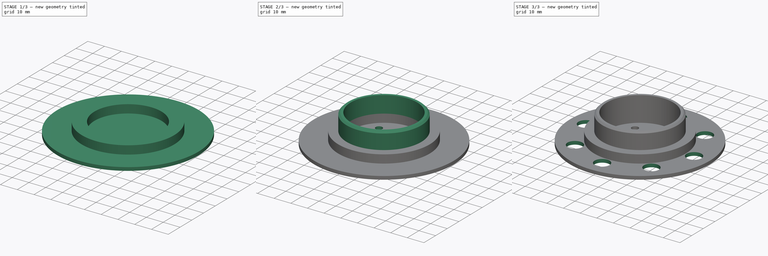
[diagram: build sequence overview — one tinted view per stage of 3, left to right]
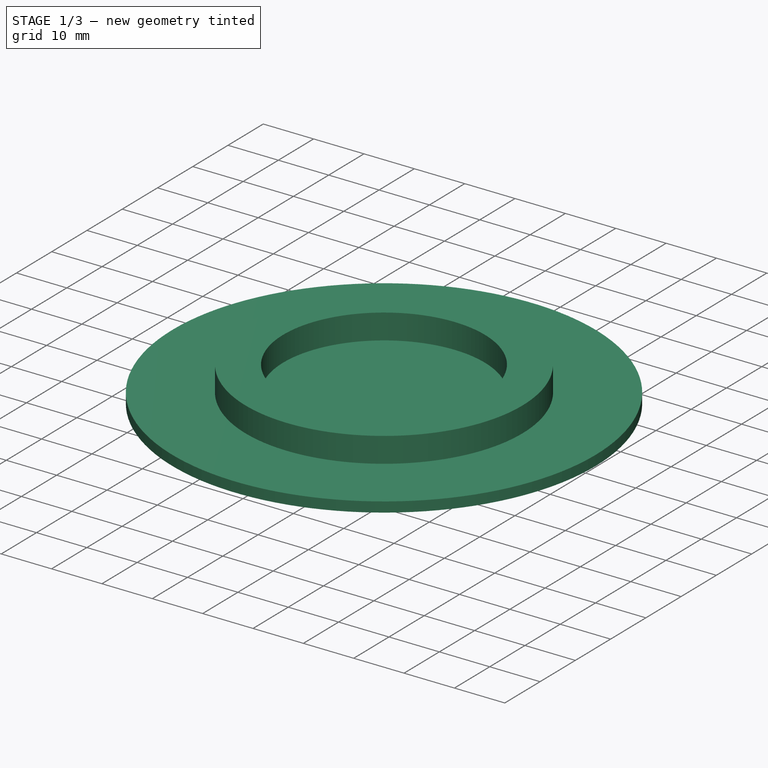
[diagram: stage 1 of 3 — iso view after this stage's code; geometry added in this stage tinted green]
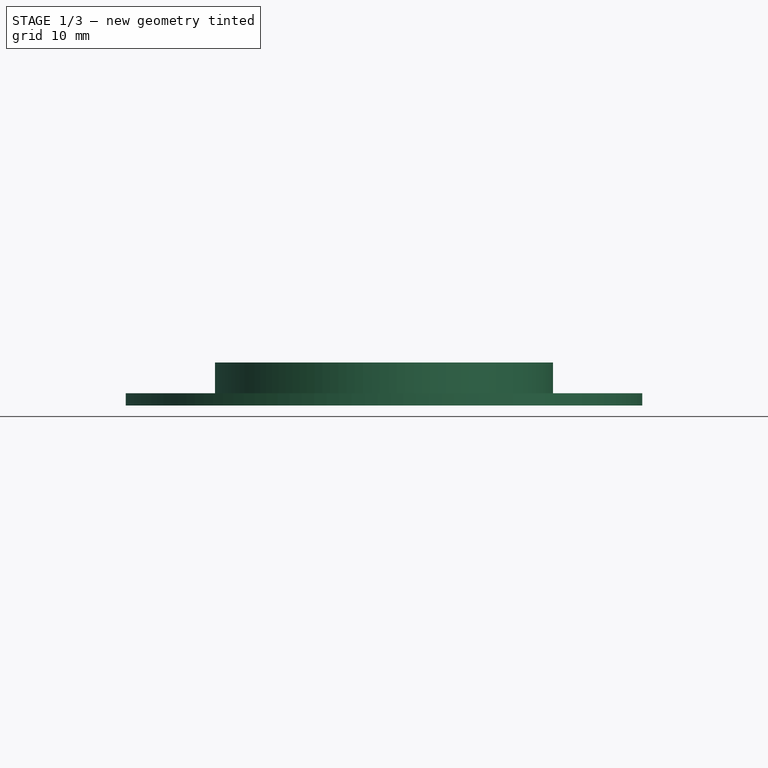
[diagram: stage 1 of 3 — front view after this stage's code; geometry added in this stage tinted green]
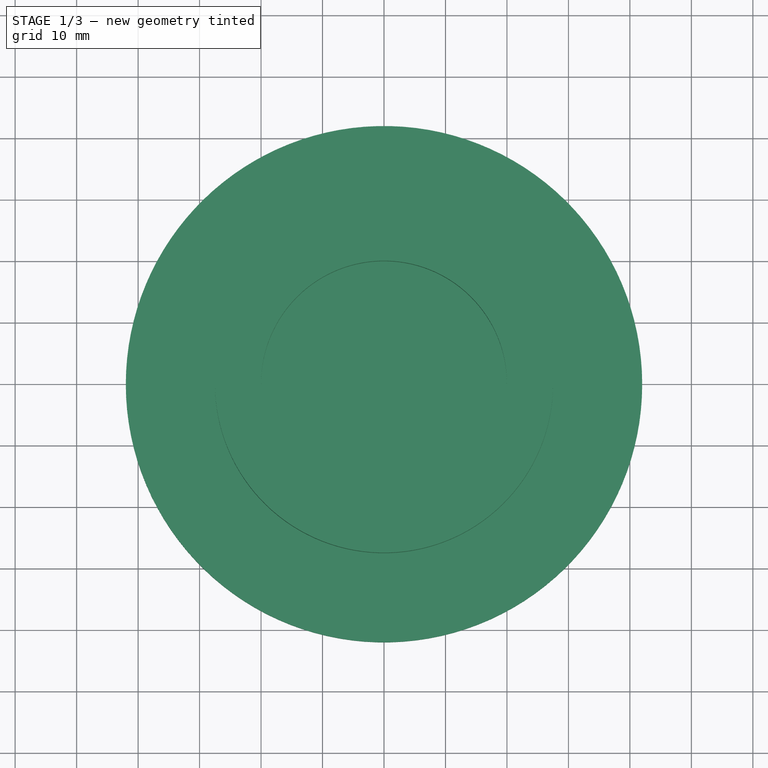
[diagram: stage 1 of 3 — top view after this stage's code; geometry added in this stage tinted green]
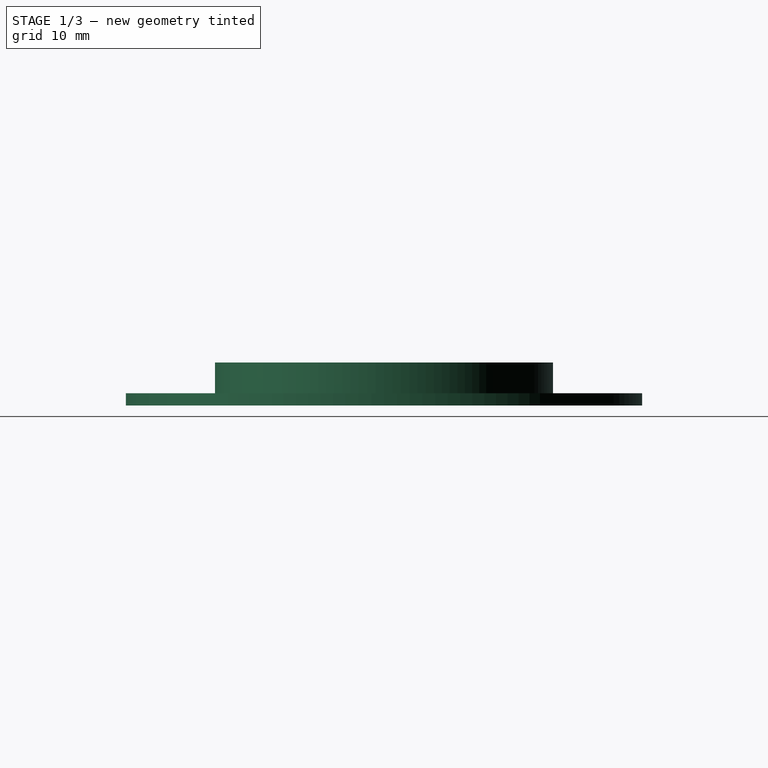
[diagram: stage 1 of 3 — right view after this stage's code; geometry added in this stage tinted green]
FCSTD DOCUMENT  (FreeCAD 0.19R24276 (Git))
Label: Bearing_support_for45x75x11_v1
License: All rights reserved
LicenseURL: http://en.wikipedia.org/wiki/All_rights_reserved
objects: Sketcher::SketchObject×6, PartDesign::Pad×3, PartDesign::Pocket×3, PartDesign::Chamfer×1, PartDesign::Body×1
note: 21 computed .brp shape members not serialized (recipe doc carries the construction recipe); baked Part::Feature solids carry a one-line shape summary decoded from their .brp

FEATURE [Sketcher::SketchObject] Sketch
  FullyConstrained = true
  MapMode = 5
  Support = -> [XY_Plane]
  sketch-geometry (1):
    g0: Circle CenterX=0 CenterY=0 CenterZ=0 NormalX=0 NormalY=0 NormalZ=1 AngleXU=0 Radius=42
  constraints (2):
    c: Coincident(g0,g-1)
    c: Diameter(g0) = 84
FEATURE [PartDesign::Pad] Pad
  Direction = (1,1,1)
  Length = 2
  Length2 = 100
  Profile = -> Sketch
  Type = 0
FEATURE [Sketcher::SketchObject] Sketch001
  FullyConstrained = true
  MapMode = 5
  Placement = pos=(0,0,2) rot=(0,0,1;0rad)
  Support = -> [Pad]
  sketch-geometry (2):
    g0: Circle CenterX=0 CenterY=0 CenterZ=0 NormalX=0 NormalY=0 NormalZ=1 AngleXU=0 Radius=27.5
    g1: Circle CenterX=0 CenterY=0 CenterZ=0 NormalX=0 NormalY=0 NormalZ=1 AngleXU=0 Radius=20
  constraints (4):
    c: Coincident(g0,g-1)
    c: Coincident(g1,g0)
    c: Diameter(g1) = 40
    c: Diameter(g0) = 55
FEATURE [PartDesign::Pad] Pad001
  BaseFeature = -> Pad
  Direction = (1,1,1)
  Length = 5
  Length2 = 100
  Profile = -> Sketch001
  Type = 0
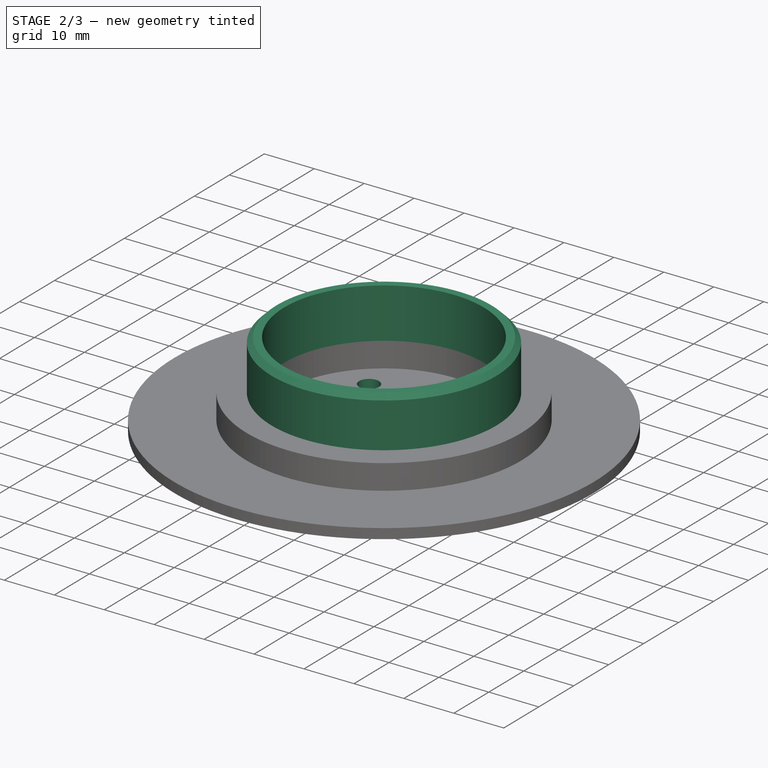
[diagram: stage 2 of 3 — iso view after this stage's code; geometry added in this stage tinted green]
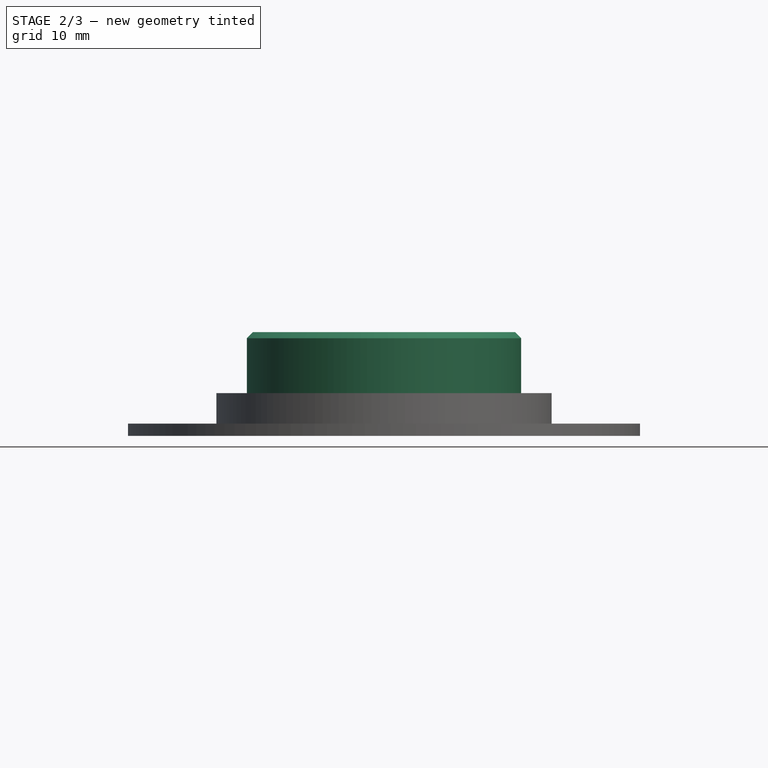
[diagram: stage 2 of 3 — front view after this stage's code; geometry added in this stage tinted green]
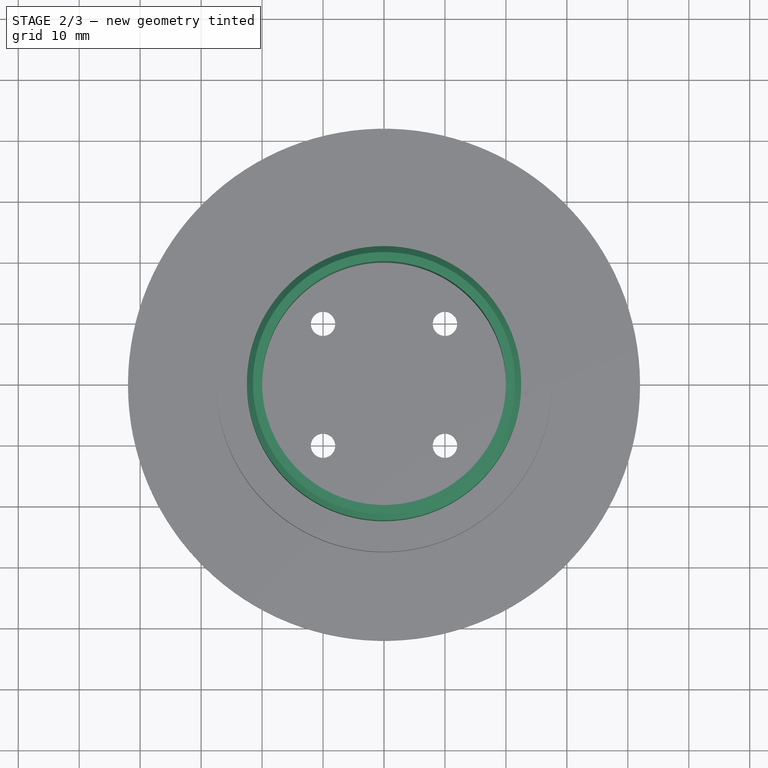
[diagram: stage 2 of 3 — top view after this stage's code; geometry added in this stage tinted green]
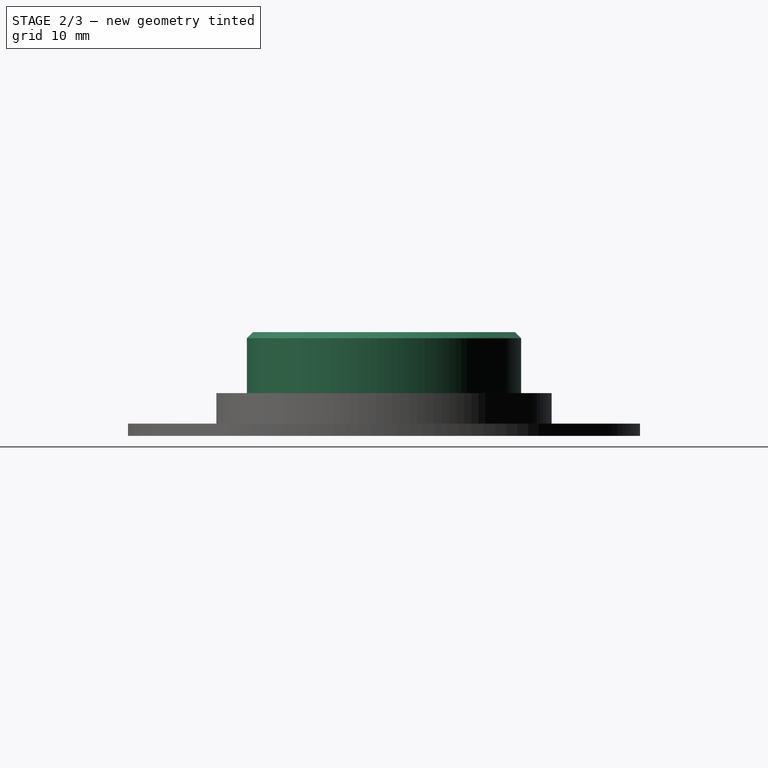
[diagram: stage 2 of 3 — right view after this stage's code; geometry added in this stage tinted green]
FEATURE [Sketcher::SketchObject] Sketch002
  FullyConstrained = true
  MapMode = 5
  Placement = pos=(0,0,7) rot=(0,0,1;0rad)
  Support = -> [Pad001]
  sketch-geometry (2):
    g0: Circle CenterX=0 CenterY=0 CenterZ=0 NormalX=0 NormalY=0 NormalZ=1 AngleXU=0 Radius=20
    g1: Circle CenterX=0 CenterY=0 CenterZ=0 NormalX=0 NormalY=0 NormalZ=1 AngleXU=0 Radius=22.5
  constraints (4):
    c: Coincident(g0,g-1)
    c: Coincident(g1,g0)
    c: Diameter(g0) = 40
    c: Diameter(g1) = 45
FEATURE [PartDesign::Pad] Pad002
  BaseFeature = -> Pad001
  Direction = (1,1,1)
  Length = 10
  Length2 = 100
  Profile = -> Sketch002
  Type = 0
FEATURE [PartDesign::Chamfer] Chamfer
  Angle = 45
  Base = -> Pad002 [Edge9]
  BaseFeature = -> Pad002
  ChamferType = 0
  FlipDirection = false
  Size = 1
  Size2 = 1
  SupportTransform = false
FEATURE [Sketcher::SketchObject] Sketch003
  FullyConstrained = false
  MapMode = 5
  Placement = pos=(0,0,2) rot=(0,0,1;0rad)
  Support = -> [Chamfer]
  sketch-geometry (4):
    g0: Circle CenterX=-10 CenterY=10 CenterZ=0 NormalX=0 NormalY=0 NormalZ=1 AngleXU=0 Radius=2
    g1: Circle CenterX=10 CenterY=10 CenterZ=0 NormalX=0 NormalY=0 NormalZ=1 AngleXU=0 Radius=2
    g2: Circle CenterX=10 CenterY=-10 CenterZ=0 NormalX=0 NormalY=0 NormalZ=1 AngleXU=0 Radius=2
    g3: Circle CenterX=-10 CenterY=-10 CenterZ=0 NormalX=0 NormalY=0 NormalZ=1 AngleXU=0 Radius=2
  constraints (4):
    c: Diameter(g1) = 4
    c: Equal(g3,g2)
    c: Equal(g2,g1)
    c: Equal(g0,g3)
FEATURE [PartDesign::Pocket] Pocket
  BaseFeature = -> Chamfer
  Length = 5
  Length2 = 100
  Profile = -> Sketch003
  Type = 1
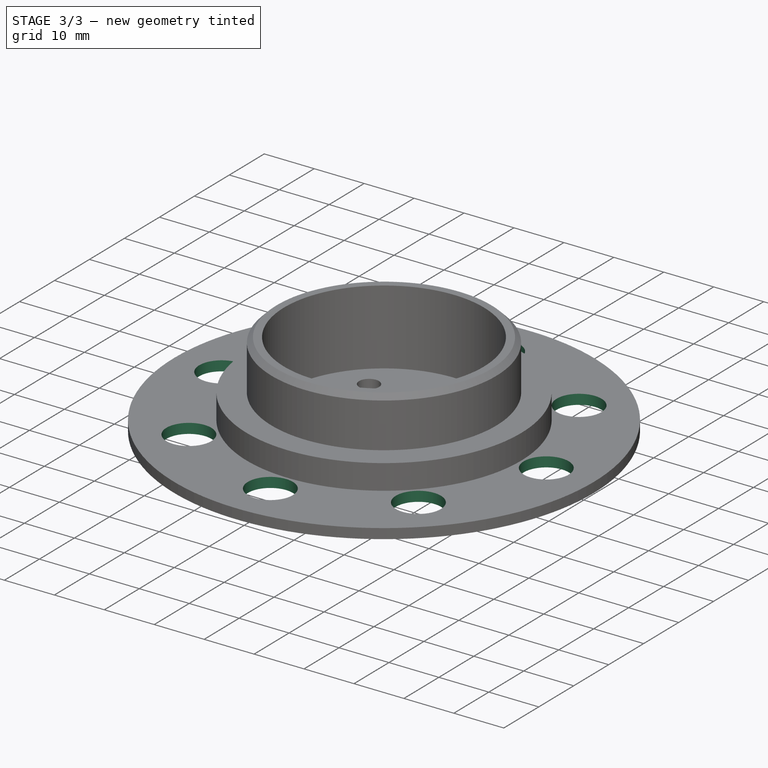
[diagram: stage 3 of 3 — iso view after this stage's code; geometry added in this stage tinted green]
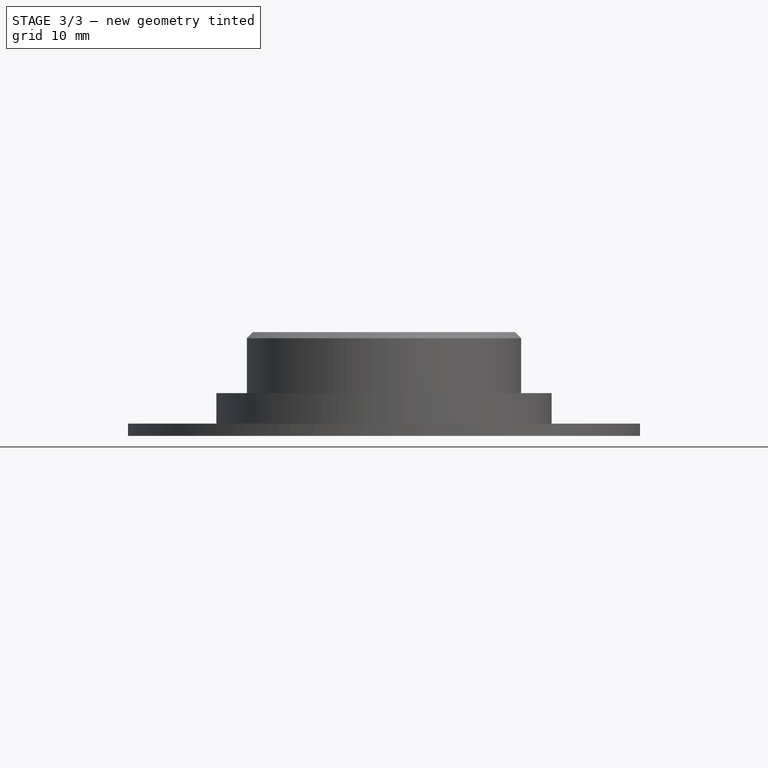
[diagram: stage 3 of 3 — front view after this stage's code; geometry added in this stage tinted green]
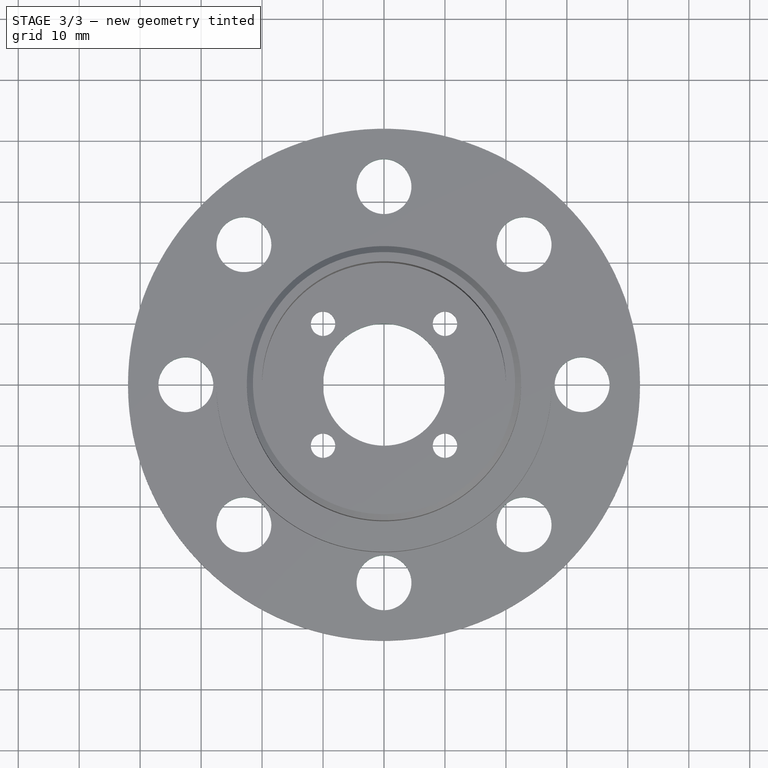
[diagram: stage 3 of 3 — top view after this stage's code; geometry added in this stage tinted green]
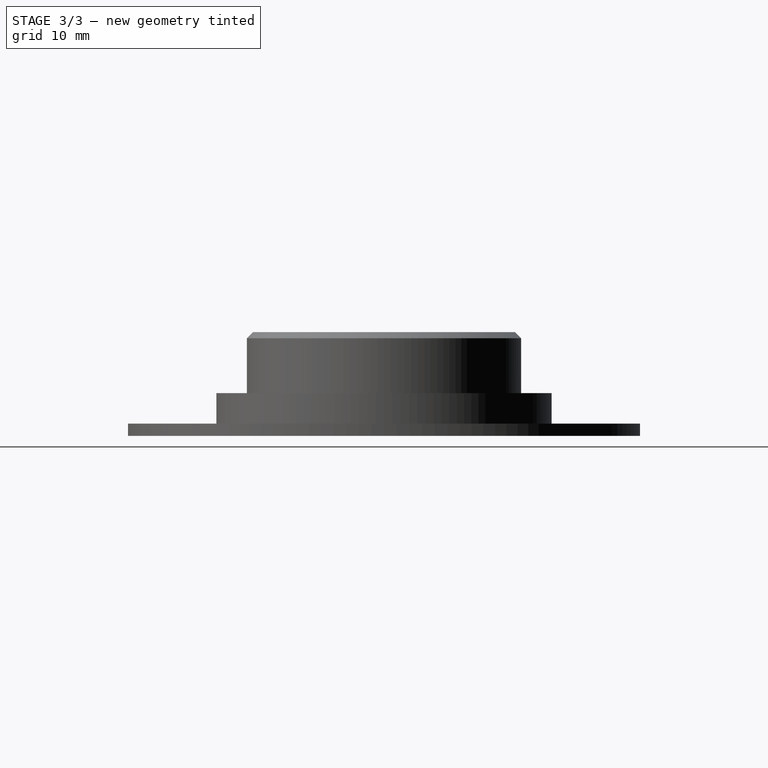
[diagram: stage 3 of 3 — right view after this stage's code; geometry added in this stage tinted green]
FEATURE [Sketcher::SketchObject] Sketch004
  FullyConstrained = true
  MapMode = 5
  Placement = pos=(0,0,2) rot=(0,0,1;0rad)
  Support = -> [Pocket]
  sketch-geometry (1):
    g0: Circle CenterX=0 CenterY=0 CenterZ=0 NormalX=0 NormalY=0 NormalZ=1 AngleXU=0 Radius=10
  constraints (2):
    c: Coincident(g0,g-1)
    c: Diameter(g0) = 20
FEATURE [PartDesign::Pocket] Pocket001
  BaseFeature = -> Pocket
  Length = 5
  Length2 = 100
  Profile = -> Sketch004
  Type = 0
FEATURE [Sketcher::SketchObject] Sketch005
  FullyConstrained = false
  MapMode = 5
  Placement = pos=(0,0,2) rot=(0,0,1;0rad)
  Support = -> [Pocket001]
  sketch-geometry (20):
    g0: Circle CenterX=0 CenterY=0 CenterZ=0 NormalX=0 NormalY=0 NormalZ=1 AngleXU=0 Radius=37.5
    g1: Circle CenterX=0 CenterY=0 CenterZ=0 NormalX=0 NormalY=0 NormalZ=1 AngleXU=0 Radius=27.5
    g2: Circle CenterX=0 CenterY=0 CenterZ=0 NormalX=0 NormalY=0 NormalZ=1 AngleXU=0 Radius=32.5
    g3: Circle CenterX=-22.981 CenterY=22.981 CenterZ=0 NormalX=0 NormalY=0 NormalZ=1 AngleXU=0 Radius=4.5
    g4: Circle CenterX=2e-15 CenterY=32.5 CenterZ=0 NormalX=0 NormalY=0 NormalZ=1 AngleXU=0 Radius=4.5
    g5: Circle CenterX=22.981 CenterY=22.981 CenterZ=0 NormalX=0 NormalY=0 NormalZ=1 AngleXU=0 Radius=4.5
    g6: Circle CenterX=32.5 CenterY=0 CenterZ=0 NormalX=0 NormalY=0 NormalZ=1 AngleXU=0 Radius=4.5
    g7: LineSegment StartX=0 StartY=0 StartZ=0 EndX=32.5 EndY=0 EndZ=0
    g8: LineSegment StartX=0 StartY=0 StartZ=0 EndX=22.981 EndY=22.981 EndZ=0
    g9: LineSegment StartX=0 StartY=0 StartZ=0 EndX=2e-15 EndY=32.5 EndZ=0
    g10: LineSegment StartX=0 StartY=0 StartZ=0 EndX=-22.981 EndY=22.981 EndZ=0
    g11: LineSegment StartX=0 StartY=0 StartZ=0 EndX=59.4864 EndY=0 EndZ=0
    g12: Circle CenterX=-32.5 CenterY=4e-15 CenterZ=0 NormalX=0 NormalY=0 NormalZ=1 AngleXU=0 Radius=4.5
    g13: Circle CenterX=-22.981 CenterY=-22.981 CenterZ=0 NormalX=0 NormalY=0 NormalZ=1 AngleXU=0 Radius=4.5
    g14: Circle CenterX=5.3e-15 CenterY=-32.5 CenterZ=0 NormalX=0 NormalY=0 NormalZ=1 AngleXU=0 Radius=4.5
    g15: Circle CenterX=22.981 CenterY=-22.981 CenterZ=0 NormalX=0 NormalY=0 NormalZ=1 AngleXU=0 Radius=4.5
    g16: LineSegment StartX=-32.5 StartY=4e-15 StartZ=0 EndX=0 EndY=0 EndZ=0
    g17: LineSegment StartX=-22.981 StartY=-22.981 StartZ=0 EndX=0 EndY=0 EndZ=0
    g18: LineSegment StartX=5.3e-15 StartY=-32.5 StartZ=0 EndX=0 EndY=0 EndZ=0
    g19: LineSegment StartX=22.981 StartY=-22.981 StartZ=0 EndX=0 EndY=0 EndZ=0
  constraints (48):
    c: Coincident(g0,g-1)
    c: Diameter(g0) = 75
    c: Coincident(g1,g-1)
    c: Diameter(g1) = 55
    c: Coincident(g2,g-1)
    c: Diameter(g2) = 65
    c: PointOnObject(g3,g2)
    c: PointOnObject(g4,g2)
    c: PointOnObject(g5,g2)
    c: PointOnObject(g6,g2)
    c: Equal(g3,g4)
    c: Equal(g4,g5)
    c: Equal(g5,g6)
    c: Diameter(g3) = 9
    c: Coincident(g7,g-1)
    c: Coincident(g7,g6)
    c: Coincident(g8,g-1)
    c: Coincident(g8,g5)
    c: Coincident(g9,g-1)
    c: Coincident(g9,g4)
    c: Coincident(g10,g-1)
    c: Coincident(g10,g3)
    c: Coincident(g11,g-1)
    c: PointOnObject(g11,g-1)
    c: Angle(g11,g7) = 0
    c: Angle(g11,g8) = 0.785398
    c: Angle(g11,g9) = 1.5708
    c: Angle(g11,g10) = 2.35619
    c: PointOnObject(g12,g2)
    c: PointOnObject(g13,g2)
    c: PointOnObject(g14,g2)
    c: PointOnObject(g15,g2)
    c: Coincident(g16,g12)
    c: Coincident(g16,g-1)
    c: Coincident(g17,g13)
    c: Coincident(g17,g-1)
    c: Coincident(g18,g14)
    c: Coincident(g18,g-1)
    c: Coincident(g19,g15)
    c: Coincident(g19,g-1)
    c: Angle(g11,g16) = 3.14159
    c: Angle(g17,g11) = 2.35619
    c: Angle(g18,g11) = 1.5708
    c: Angle(g19,g11) = 0.785398
    c: Equal(g12,g13)
    c: Equal(g13,g14)
    c: Equal(g14,g15)
    c: Equal(g15,g6)
FEATURE [PartDesign::Pocket] Pocket002
  BaseFeature = -> Pocket001
  Length = 5
  Length2 = 100
  Profile = -> Sketch005
  Type = 1
FEATURE [PartDesign::Body] Body
  Group = -> [Sketch,Pad,Sketch001,Pad001,Sketch002,Pad002,Chamfer,Sketch003,Pocket,Sketch004,Pocket001,Sketch005,Pocket002]
  Origin = -> Origin
  Tip = -> Pocket002
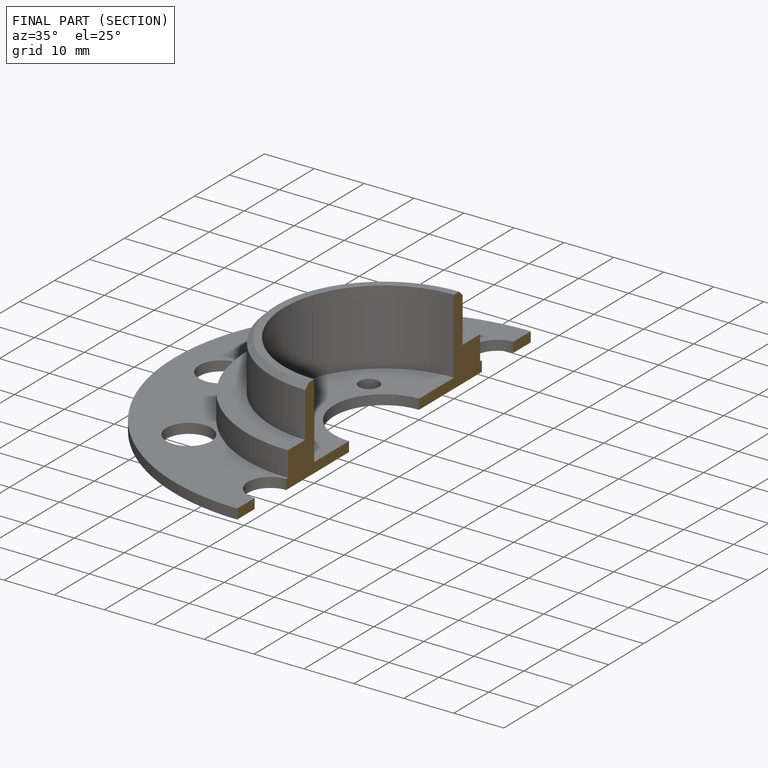
[diagram: finished part — half-section view (interior)]
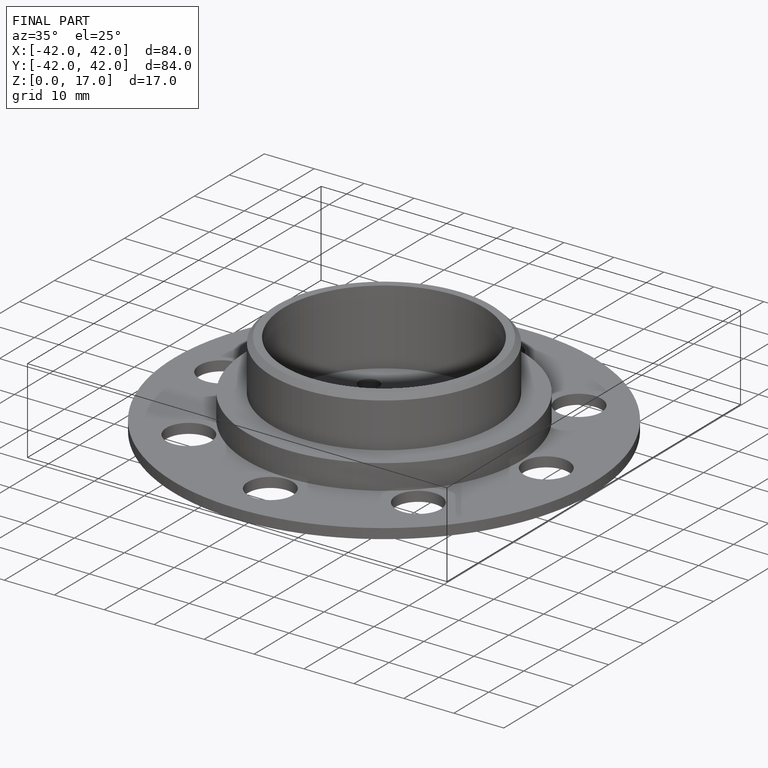
[diagram: finished part — iso view with bounding-box wireframe]
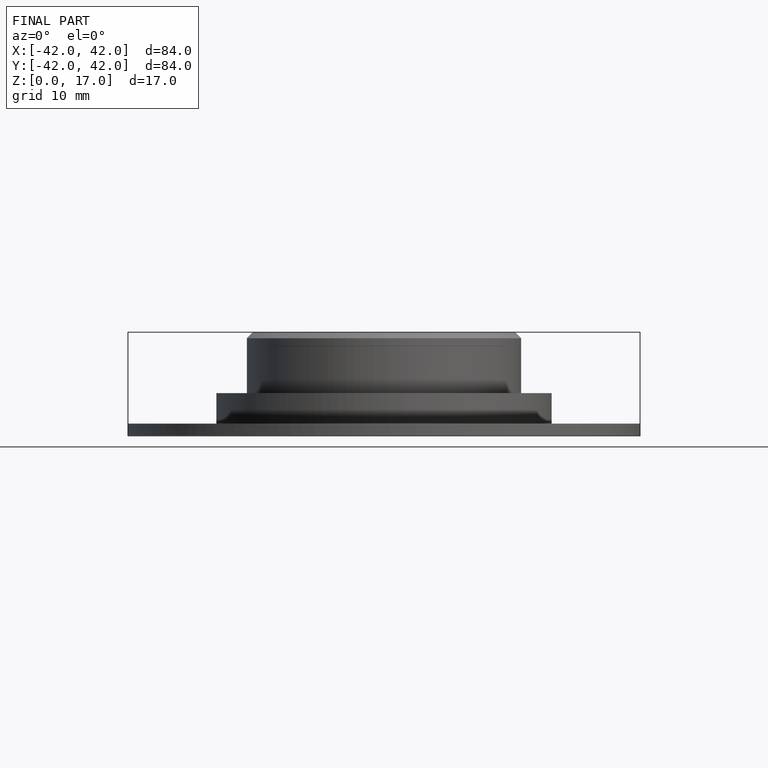
[diagram: finished part — front view with bounding-box wireframe]
